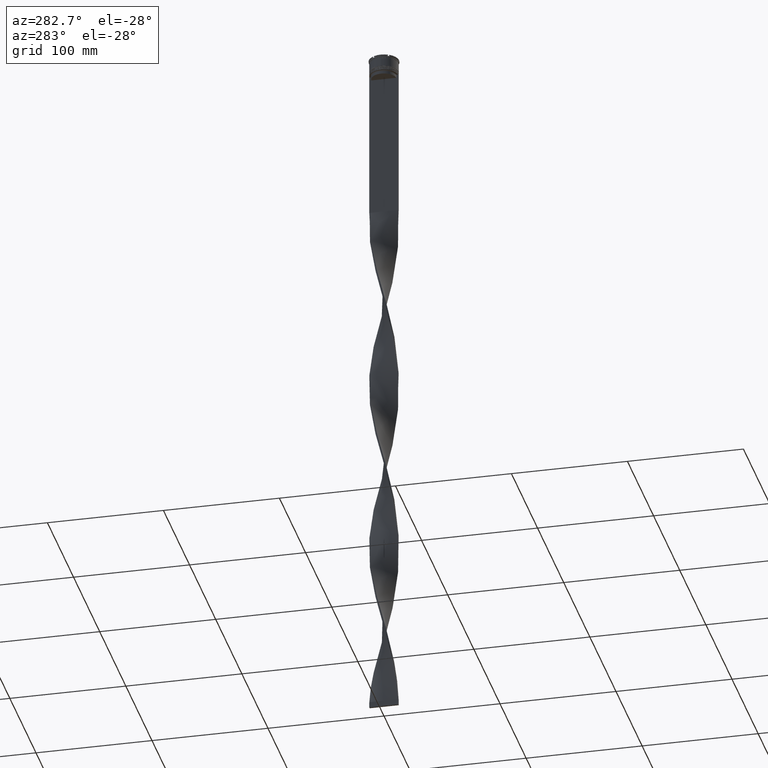
[diagram: clean part render]
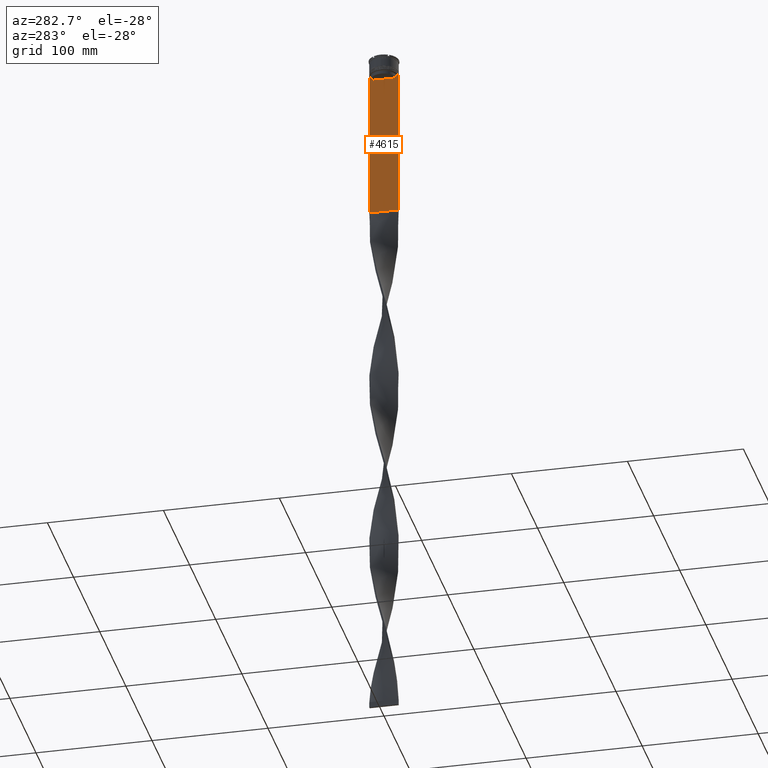
[diagram: same view with one face highlighted and labeled with its STEP entity id]
A machine part, auxiliary view. The second image highlights one B-rep face of the part: STEP entity #4615.
In plain terms, the highlighted planar face has unit normal (-1, 0, 0).
Its self-contained STEP definition (entity closure, byte-faithful):
#8 = ORIENTED_EDGE ( 'NONE', *, *, #2482, .F. ) ;
#117 = LINE ( 'NONE', #851, #2877 ) ;
#122 = VECTOR ( 'NONE', #3753, 1000.000000000000000 ) ;
#211 = FACE_OUTER_BOUND ( 'NONE', #4723, .T. ) ;
#300 = VECTOR ( 'NONE', #818, 1000.000000000000000 ) ;
#434 = VERTEX_POINT ( 'NONE', #2748 ) ;
#444 = CARTESIAN_POINT ( 'NONE',  ( -0.7499999999999997780, -11.04122051801870619, -14.33334204001847745 ) ) ;
#470 = CARTESIAN_POINT ( 'NONE',  ( -0.7499999999999997780, -11.20826532207830439, -14.16667499063191471 ) ) ;
#504 = DIRECTION ( 'NONE',  ( 0.000000000000000000, -1.000000000000000000, 0.000000000000000000 ) ) ;
#554 = B_SPLINE_CURVE_WITH_KNOTS ( 'NONE', 3,
 ( #3857, #444, #470, #3757 ),
 .UNSPECIFIED., .F., .F.,
 ( 4, 4 ),
 ( 0.05009718908159448147, 0.05081156920313960323 ),
 .UNSPECIFIED. ) ;
#569 = DIRECTION ( 'NONE',  ( 0.000000000000000000, 1.000000000000000000, 0.000000000000000000 ) ) ;
#580 = ORIENTED_EDGE ( 'NONE', *, *, #2952, .F. ) ;
#595 = CARTESIAN_POINT ( 'NONE',  ( -0.7499999999999997780, -12.50000000000000000, -143.0000000000000284 ) ) ;
#701 = EDGE_CURVE ( 'NONE', #2607, #2820, #1319, .T. ) ;
#777 = ORIENTED_EDGE ( 'NONE', *, *, #2507, .F. ) ;
#818 = DIRECTION ( 'NONE',  ( 0.000000000000000000, 0.000000000000000000, -1.000000000000000000 ) ) ;
#835 = LINE ( 'NONE', #2310, #1452 ) ;
#851 = CARTESIAN_POINT ( 'NONE',  ( -0.7499999999999997780, -10.87416663473574374, 0.000000000000000000 ) ) ;
#904 = VECTOR ( 'NONE', #4178, 1000.000000000000000 ) ;
#944 = VERTEX_POINT ( 'NONE', #3774 ) ;
#965 = EDGE_CURVE ( 'NONE', #4404, #1609, #1487, .T. ) ;
#1002 = EDGE_CURVE ( 'NONE', #4827, #944, #1885, .T. ) ;
#1079 = CARTESIAN_POINT ( 'NONE',  ( -0.7499999999999997780, 12.37729776647553059, -14.00000000000000178 ) ) ;
#1088 = LINE ( 'NONE', #3350, #4451 ) ;
#1106 = DIRECTION ( 'NONE',  ( 0.000000000000000000, -1.000000000000000000, 0.000000000000000000 ) ) ;
#1112 = CARTESIAN_POINT ( 'NONE',  ( -0.7499999999999997780, 10.90000000000000213, -17.00000000000000000 ) ) ;
#1141 = CARTESIAN_POINT ( 'NONE',  ( -0.7499999999999997780, 12.50000000000000000, 11.04495957273638673 ) ) ;
#1145 = ORIENTED_EDGE ( 'NONE', *, *, #4813, .F. ) ;
#1193 = ORIENTED_EDGE ( 'NONE', *, *, #2418, .F. ) ;
#1221 = VECTOR ( 'NONE', #569, 1000.000000000000000 ) ;
#1279 = CARTESIAN_POINT ( 'NONE',  ( -0.7499999999999997780, 11.20826531587977648, -14.16667499681701514 ) ) ;
#1319 = B_SPLINE_CURVE_WITH_KNOTS ( 'NONE', 3,
 ( #4649, #1279, #3170, #4676 ),
 .UNSPECIFIED., .F., .F.,
 ( 4, 4 ),
 ( 0.01936090553552769281, 0.02006881572333104116 ),
 .UNSPECIFIED. ) ;
#1452 = VECTOR ( 'NONE', #3807, 1000.000000000000000 ) ;
#1487 = LINE ( 'NONE', #1112, #4043 ) ;
#1492 = CARTESIAN_POINT ( 'NONE',  ( -0.7499999999999997780, 12.50000000000000000, -14.00000000000000178 ) ) ;
#1567 = LINE ( 'NONE', #3628, #2944 ) ;
#1609 = VERTEX_POINT ( 'NONE', #1640 ) ;
#1640 = CARTESIAN_POINT ( 'NONE',  ( -0.7499999999999997780, -10.87416663473574019, -17.00000000000000000 ) ) ;
#1648 = CARTESIAN_POINT ( 'NONE',  ( -0.7499999999999997780, 10.87416663473574019, -17.00000000000000000 ) ) ;
#1674 = CARTESIAN_POINT ( 'NONE',  ( -0.7499999999999997780, -12.50000000000000000, 11.04495957273638673 ) ) ;
#1707 = AXIS2_PLACEMENT_3D ( 'NONE', #4680, #1815, #1794 ) ;
#1794 = DIRECTION ( 'NONE',  ( 0.000000000000000000, 0.000000000000000000, 1.000000000000000000 ) ) ;
#1815 = DIRECTION ( 'NONE',  ( -1.000000000000000000, 0.000000000000000000, 0.000000000000000000 ) ) ;
#1885 = LINE ( 'NONE', #1141, #122 ) ;
#1892 = CARTESIAN_POINT ( 'NONE',  ( -0.7499999999999997780, -12.50000000000000000, -14.00000000000000178 ) ) ;
#1948 = CARTESIAN_POINT ( 'NONE',  ( -0.7499999999999997780, -12.50000000000000000, -14.00000000000000178 ) ) ;
#2075 = CARTESIAN_POINT ( 'NONE',  ( -0.7499999999999997780, -10.87416663473574374, -14.50000000000000000 ) ) ;
#2209 = ORIENTED_EDGE ( 'NONE', *, *, #701, .F. ) ;
#2310 = CARTESIAN_POINT ( 'NONE',  ( -0.7499999999999997780, -12.50000000000000000, -14.00000000000000178 ) ) ;
#2416 = VECTOR ( 'NONE', #504, 1000.000000000000000 ) ;
#2418 = EDGE_CURVE ( 'NONE', #4589, #434, #4203, .T. ) ;
#2426 = LINE ( 'NONE', #1674, #300 ) ;
#2450 = ORIENTED_EDGE ( 'NONE', *, *, #4250, .F. ) ;
#2451 = CARTESIAN_POINT ( 'NONE',  ( -0.7499999999999997780, 11.37530219378809093, -14.00000000000000178 ) ) ;
#2482 = EDGE_CURVE ( 'NONE', #4655, #2607, #835, .T. ) ;
#2507 = EDGE_CURVE ( 'NONE', #2820, #4404, #1567, .T. ) ;
#2607 = VERTEX_POINT ( 'NONE', #2451 ) ;
#2748 = CARTESIAN_POINT ( 'NONE',  ( -0.7499999999999997780, -12.37729776647553059, -14.00000000000000178 ) ) ;
#2820 = VERTEX_POINT ( 'NONE', #3122 ) ;
#2877 = VECTOR ( 'NONE', #3478, 1000.000000000000000 ) ;
#2926 = PLANE ( 'NONE',  #1707 ) ;
#2944 = VECTOR ( 'NONE', #3205, 1000.000000000000000 ) ;
#2952 = EDGE_CURVE ( 'NONE', #1609, #4701, #117, .T. ) ;
#3016 = VERTEX_POINT ( 'NONE', #4171 ) ;
#3122 = CARTESIAN_POINT ( 'NONE',  ( -0.7499999999999997780, 10.87416663473574374, -14.50000000000000000 ) ) ;
#3127 = VERTEX_POINT ( 'NONE', #1892 ) ;
#3162 = LINE ( 'NONE', #595, #1221 ) ;
#3170 = CARTESIAN_POINT ( 'NONE',  ( -0.7499999999999997780, 11.04122051153452055, -14.33334204648729582 ) ) ;
#3205 = DIRECTION ( 'NONE',  ( 0.000000000000000000, 0.000000000000000000, -1.000000000000000000 ) ) ;
#3251 = ORIENTED_EDGE ( 'NONE', *, *, #965, .F. ) ;
#3350 = CARTESIAN_POINT ( 'NONE',  ( -0.7499999999999997780, -12.50000000000000000, -14.00000000000000178 ) ) ;
#3366 = EDGE_CURVE ( 'NONE', #3016, #944, #3162, .T. ) ;
#3478 = DIRECTION ( 'NONE',  ( -0.000000000000000000, -0.000000000000000000, 1.000000000000000000 ) ) ;
#3499 = CARTESIAN_POINT ( 'NONE',  ( -0.7499999999999997780, -12.50000000000000000, -14.00000000000000178 ) ) ;
#3628 = CARTESIAN_POINT ( 'NONE',  ( -0.7499999999999997780, 10.87416663473574374, 0.000000000000000000 ) ) ;
#3753 = DIRECTION ( 'NONE',  ( 0.000000000000000000, 0.000000000000000000, -1.000000000000000000 ) ) ;
#3757 = CARTESIAN_POINT ( 'NONE',  ( -0.7499999999999997780, -11.37530219378809093, -14.00000000000000178 ) ) ;
#3774 = CARTESIAN_POINT ( 'NONE',  ( -0.7499999999999997780, 12.50000000000000000, -143.0000000000000284 ) ) ;
#3807 = DIRECTION ( 'NONE',  ( 0.000000000000000000, -1.000000000000000000, 0.000000000000000000 ) ) ;
#3822 = ORIENTED_EDGE ( 'NONE', *, *, #4371, .F. ) ;
#3857 = CARTESIAN_POINT ( 'NONE',  ( -0.7499999999999997780, -10.87416663473574374, -14.50000000000000000 ) ) ;
#4037 = ORIENTED_EDGE ( 'NONE', *, *, #3366, .F. ) ;
#4043 = VECTOR ( 'NONE', #4485, 1000.000000000000000 ) ;
#4171 = CARTESIAN_POINT ( 'NONE',  ( -0.7499999999999997780, -12.50000000000000000, -143.0000000000000284 ) ) ;
#4178 = DIRECTION ( 'NONE',  ( 0.000000000000000000, -1.000000000000000000, 0.000000000000000000 ) ) ;
#4203 = LINE ( 'NONE', #1948, #904 ) ;
#4250 = EDGE_CURVE ( 'NONE', #4827, #4655, #1088, .T. ) ;
#4309 = EDGE_CURVE ( 'NONE', #434, #3127, #4652, .T. ) ;
#4371 = EDGE_CURVE ( 'NONE', #3127, #3016, #2426, .T. ) ;
#4404 = VERTEX_POINT ( 'NONE', #1648 ) ;
#4451 = VECTOR ( 'NONE', #1106, 1000.000000000000000 ) ;
#4485 = DIRECTION ( 'NONE',  ( 0.000000000000000000, -1.000000000000000000, 0.000000000000000000 ) ) ;
#4525 = ORIENTED_EDGE ( 'NONE', *, *, #4309, .F. ) ;
#4589 = VERTEX_POINT ( 'NONE', #4706 ) ;
#4615 = ADVANCED_FACE ( 'NONE', ( #211 ), #2926, .T. ) ;
#4631 = ORIENTED_EDGE ( 'NONE', *, *, #1002, .T. ) ;
#4649 = CARTESIAN_POINT ( 'NONE',  ( -0.7499999999999997780, 11.37530219378809093, -14.00000000000000178 ) ) ;
#4652 = LINE ( 'NONE', #3499, #2416 ) ;
#4655 = VERTEX_POINT ( 'NONE', #1079 ) ;
#4676 = CARTESIAN_POINT ( 'NONE',  ( -0.7499999999999997780, 10.87416663473574374, -14.50000000000000000 ) ) ;
#4680 = CARTESIAN_POINT ( 'NONE',  ( -0.7499999999999997780, -12.50000000000000000, 11.04495957273638673 ) ) ;
#4701 = VERTEX_POINT ( 'NONE', #2075 ) ;
#4706 = CARTESIAN_POINT ( 'NONE',  ( -0.7499999999999997780, -11.37530219378809093, -14.00000000000000178 ) ) ;
#4723 = EDGE_LOOP ( 'NONE', ( #2209, #8, #2450, #4631, #4037, #3822, #4525, #1193, #1145, #580, #3251, #777 ) ) ;
#4813 = EDGE_CURVE ( 'NONE', #4701, #4589, #554, .T. ) ;
#4827 = VERTEX_POINT ( 'NONE', #1492 ) ;